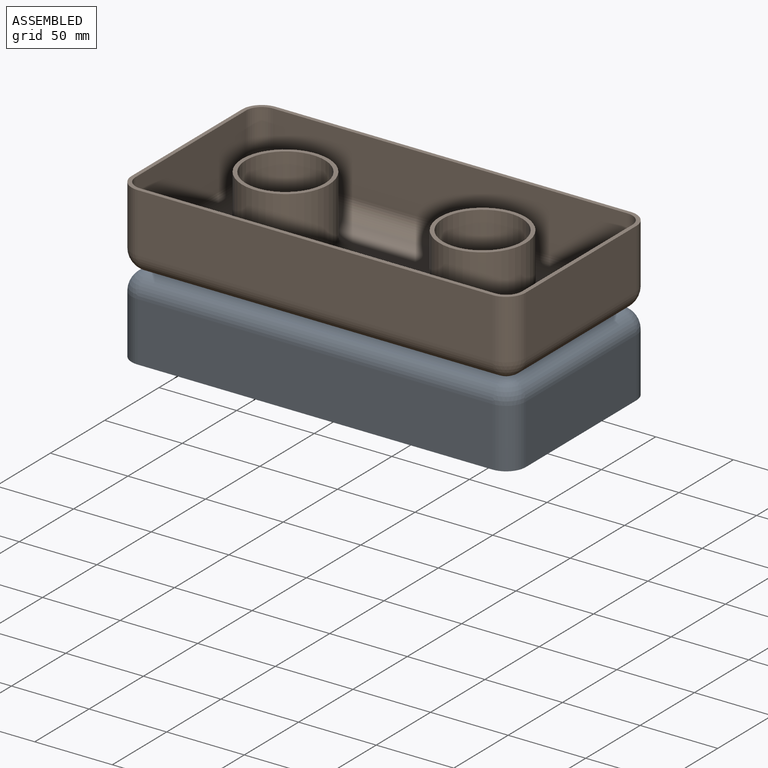
[diagram: assembled view]
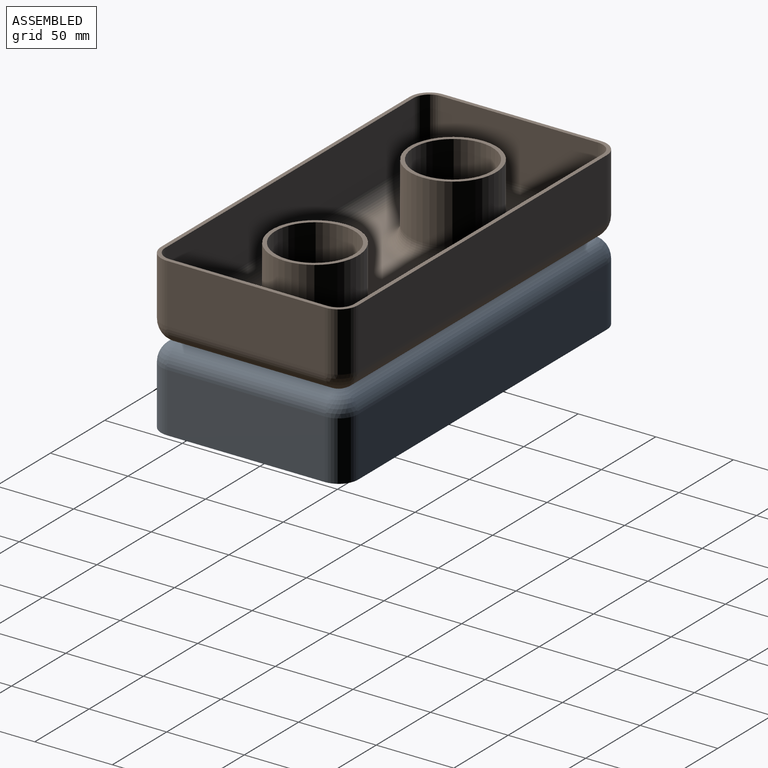
[diagram: assembled view, second angle]
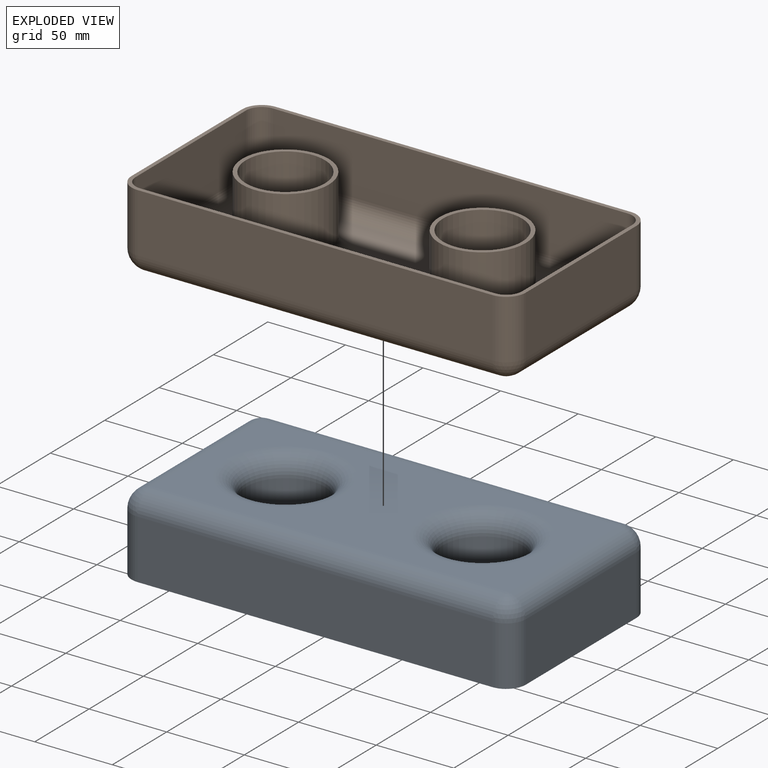
[diagram: exploded view]
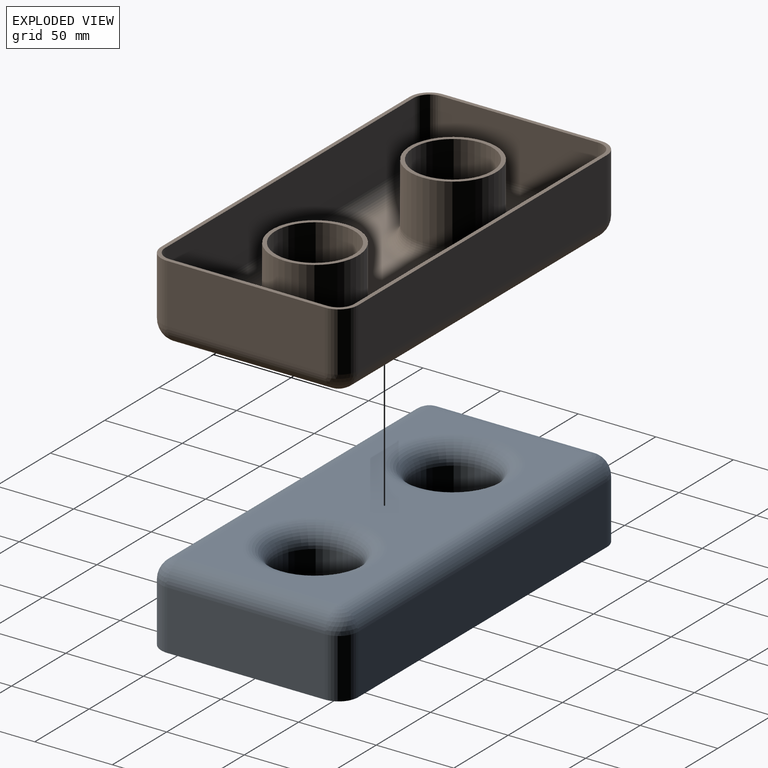
[diagram: exploded view, second angle]
ASSEMBLY  parts=2 mates=3
PART A: 45 faces, bbox 254x127x50.8 mm
  f0: plane 55.88x55.88mm, normal (0,0,-1), area 425.6mm2, adj f9,f30
  f1: plane 55.88x55.88mm, normal (0,0,-1), area 425.6mm2, adj f8,f29
  f2: plane 254x127mm, normal (0,0,-1), area 1859.8mm2, adj f3,f5,f6,f7,f12,f14,f17,f20
  f3: plane 101.6x38.1mm, normal (1,0,0), area 3871mm2, adj f2,f17,f20,f23
  f4: plane 228.6x101.6mm, normal (0,0,1), area 14105mm2, adj f10,f11,f13,f18,f19,f23
  f5: plane 101.6x38.1mm, normal (-1,0,0), area 3871mm2, adj f2,f12,f13,f14
  f6: plane 228.6x38.1mm, normal (0,-1,0), area 8709.7mm2, adj f2,f12,f17,f18
  f7: plane 228.6x38.1mm, normal (0,1,0), area 8709.7mm2, adj f2,f14,f19,f20
  f8: cylinder r=25.4mm len=50.8mm, axis (0,0,1), area 6080.5mm2, adj f1,f10
  f9: cylinder r=25.4mm len=50.8mm, axis (0,0,1), area 6080.5mm2, adj f0,f11
  f10: torus R=38.1mm, axis (0,0,-1), area 3762.2mm2, adj f4,f8
  f11: torus R=38.1mm, axis (0,0,-1), area 3762.2mm2, adj f4,f9
  f12: cylinder r=12.7mm len=38.1mm, axis (0,0,1), area 760.1mm2, adj f2,f5,f6,f15
  f13: cylinder r=12.7mm len=101.6mm, axis (0,-1,0), area 2026.8mm2, adj f4,f5,f15,f16
  f14: cylinder r=12.7mm len=38.1mm, axis (0,0,-1), area 760.1mm2, adj f2,f5,f7,f16
  f15: sphere r=12.7mm, area 253.4mm2, adj f12,f13,f18
  f16: sphere r=12.7mm, area 253.4mm2, adj f13,f14,f19
  f17: cylinder r=12.7mm len=38.1mm, axis (0,0,-1), area 760.1mm2, adj f2,f3,f6,f21
  f18: cylinder r=12.7mm len=228.6mm, axis (1,0,0), area 4560.4mm2, adj f4,f6,f15,f21
  f19: cylinder r=12.7mm len=228.6mm, axis (-1,0,0), area 4560.4mm2, adj f4,f7,f16,f22
  f20: cylinder r=12.7mm len=38.1mm, axis (0,0,1), area 760.1mm2, adj f2,f3,f7,f22
  f21: sphere r=12.7mm, area 253.4mm2, adj f17,f18,f23
  f22: sphere r=12.7mm, area 253.4mm2, adj f19,f20,f23
  f23: cylinder r=12.7mm len=101.6mm, axis (0,1,0), area 2026.8mm2, adj f3,f4,f21,f22
  f24: plane 101.6x38.1mm, normal (-1,0,0), area 3871mm2, adj f2,f38,f41,f44
  f25: plane 228.6x101.6mm, normal (0,0,-1), area 14105mm2, adj f31,f32,f34,f39,f40,f44
  f26: plane 101.6x38.1mm, normal (1,0,0), area 3871mm2, adj f2,f33,f34,f35
  f27: plane 228.6x38.1mm, normal (0,1,0), area 8709.7mm2, adj f2,f33,f38,f39
  f28: plane 228.6x38.1mm, normal (0,-1,0), area 8709.7mm2, adj f2,f35,f40,f41
  f29: cylinder r=27.94mm len=55.88mm, axis (0,0,1), area 6688.5mm2, adj f1,f31
  f30: cylinder r=27.94mm len=55.88mm, axis (0,0,1), area 6688.5mm2, adj f0,f32
  f31: torus R=38.1mm, axis (0,0,-1), area 3171.9mm2, adj f25,f29
  f32: torus R=38.1mm, axis (0,0,-1), area 3171.9mm2, adj f25,f30
  f33: cylinder r=10.16mm len=38.1mm, axis (0,0,1), area 608mm2, adj f2,f26,f27,f36
  f34: cylinder r=10.16mm len=101.6mm, axis (0,-1,0), area 1621.5mm2, adj f25,f26,f36,f37
  f35: cylinder r=10.16mm len=38.1mm, axis (0,0,-1), area 608mm2, adj f2,f26,f28,f37
  f36: sphere r=10.16mm, area 162.1mm2, adj f33,f34,f39
  f37: sphere r=10.16mm, area 162.1mm2, adj f34,f35,f40
  f38: cylinder r=10.16mm len=38.1mm, axis (0,0,-1), area 608mm2, adj f2,f24,f27,f42
  f39: cylinder r=10.16mm len=228.6mm, axis (1,0,0), area 3648.3mm2, adj f25,f27,f36,f42
  f40: cylinder r=10.16mm len=228.6mm, axis (-1,0,0), area 3648.3mm2, adj f25,f28,f37,f43
  f41: cylinder r=10.16mm len=38.1mm, axis (0,0,1), area 608mm2, adj f2,f24,f28,f43
  f42: sphere r=10.16mm, area 162.1mm2, adj f38,f39,f44
  f43: sphere r=10.16mm, area 162.1mm2, adj f40,f41,f44
  f44: cylinder r=10.16mm len=101.6mm, axis (0,1,0), area 1621.5mm2, adj f24,f25,f42,f43
PART B: same geometry as A
PLACE A t=(0,0,-25.4)mm
PLACE B rot(axis=(1,0,0),180deg) t=(0,0,25.4)mm
MATE planar B.f4 <-> A.f4  axis (0,0,-1) through (0,0,0)mm
MATE cylindrical B.f9 <-> A.f9  axis (0,0,-1) through (-63.5,0,50.8)mm
MATE cylindrical B.f8 <-> A.f8  axis (0,0,-1) through (63.5,0,50.8)mm
